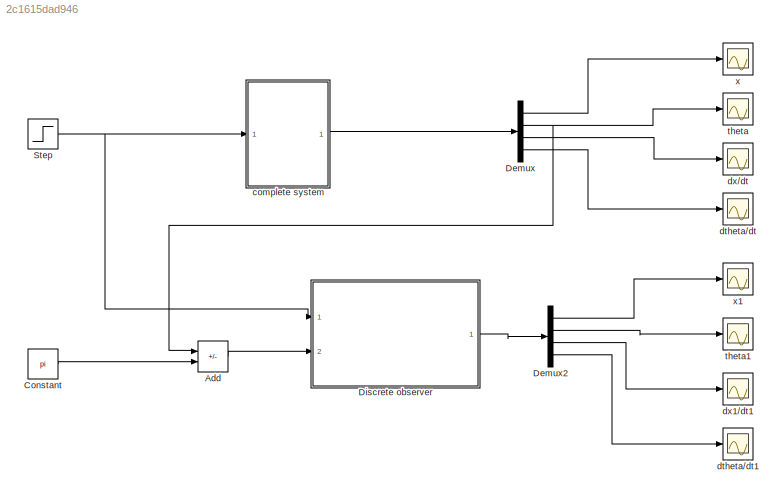
MODEL mdl_2c1615dad946
KIND model
CONFIG AbsTol = auto
CONFIG EnableMultiTasking = on
CONFIG FixedStep = 0.01
CONFIG MaxStep = auto
CONFIG MinStep = auto
CONFIG RelTol = 1e-6
CONFIG SampleTimeConstraint = Unconstrained
CONFIG SolverName = ode1
CONFIG StartTime = 0.0
CONFIG StopTime = 50
BLOCK [Sum] Add
  IconShape = rectangular
  Inputs = +-
  Ports = [2, 1]
BLOCK [Constant] Constant
  Value = pi
BLOCK [Demux] Demux
  Ports = [1, 4]
BLOCK [Demux] Demux2
  Ports = [1, 4]
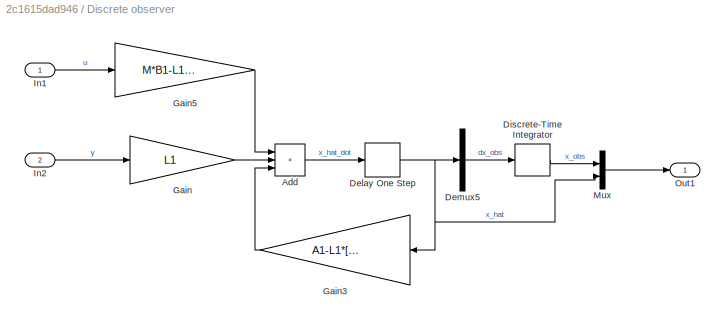
BLOCK [SubSystem] Discrete observer
  Ports = [2, 1]
  RequestExecContextInheritance = off
BLOCK [Sum] Discrete observer/Add
  IconShape = rectangular
  Inputs = +++
  Ports = [3, 1]
BLOCK [Delay] Discrete observer/Delay One Step
  DelayLength = 1
  InputPortMap = u0
  Ports = [1, 1]
BLOCK [Demux] Discrete observer/Demux5
  Outputs = 3
  Ports = [1, 3]
BLOCK [DiscreteIntegrator] Discrete observer/Discrete-Time Integrator
  ICPrevOutput = DiscIntNeverNeededParam
  ICPrevScaledInput = DiscIntNeverNeededParam
  Ports = [1, 1]
  SampleTime = 0.01
BLOCK [Gain] Discrete observer/Gain
  Gain = L1
  Multiplication = Matrix(K*u)
BLOCK [Gain] Discrete observer/Gain3
  Gain = A1-L1*[1 0 0]
  Multiplication = Matrix(K*u)
  NameLocation = top
BLOCK [Gain] Discrete observer/Gain5
  Gain = M*B1-L1*0
  Multiplication = Matrix(K*u)
BLOCK [Inport] Discrete observer/In1
BLOCK [Inport] Discrete observer/In2
  Port = 2
BLOCK [Mux] Discrete observer/Mux
  DisplayOption = bar
  Inputs = 2
  Ports = [2, 1]
BLOCK [Outport] Discrete observer/Out1
BLOCK [Step] Step
  After = 0.3
  SampleTime = 0
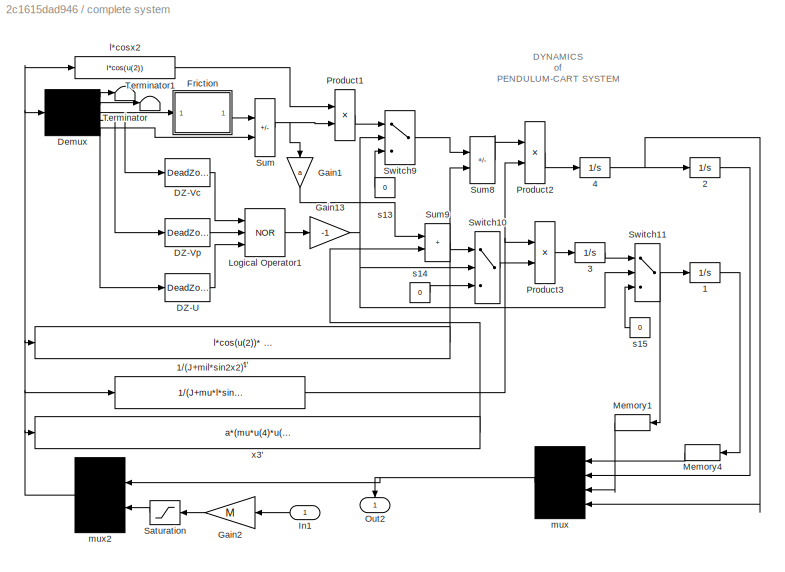
BLOCK [SubSystem] complete system
  Ports = [1, 1]
  RequestExecContextInheritance = off
BLOCK [Integrator] complete system/1
  Ports = [1, 1]
BLOCK [Fcn] complete system/1//(J+mil*sin2x2)
  Expr = 1/(J+mu*l*sin(u[2])*sin(u[2]))
BLOCK [Integrator] complete system/2
  InitialCondition = pi
  Ports = [1, 1]
BLOCK [Integrator] complete system/3
  Ports = [1, 1]
BLOCK [Integrator] complete system/4
  Ports = [1, 1]
BLOCK [DeadZone] complete system/DZ-U
  LowerValue = -DZu
  UpperValue = DZu
BLOCK [DeadZone] complete system/DZ-Vc
  LowerValue = -DZcv
  UpperValue = DZcv
BLOCK [DeadZone] complete system/DZ-Vp
  LowerValue = -DZcp
  UpperValue = DZcp
BLOCK [Demux] complete system/Demux
  Outputs = 5
  Ports = [1, 5]
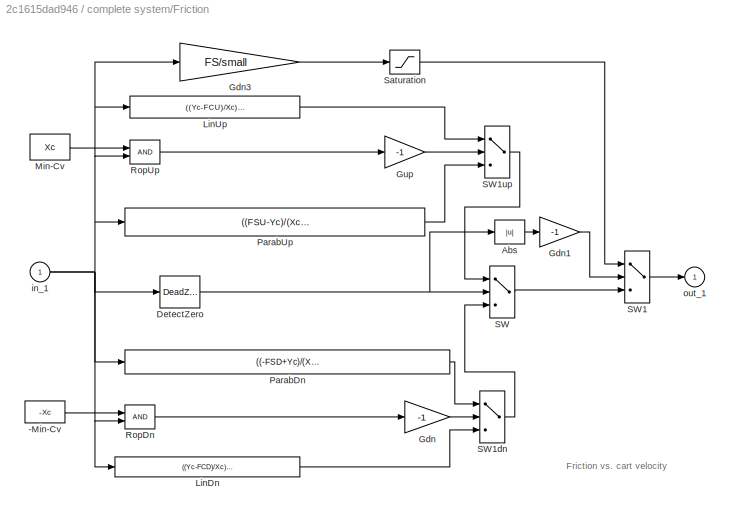
BLOCK [SubSystem] complete system/Friction
  NameLocation = top
  Ports = [1, 1]
  RequestExecContextInheritance = off
  ShowPortLabels = none
BLOCK [Constant] complete system/Friction/-Min-Cv
  Value = -Xc
BLOCK [Abs] complete system/Friction/Abs
BLOCK [DeadZone] complete system/Friction/DetectZero
  LowerValue = -Z
  UpperValue = Z
BLOCK [Gain] complete system/Friction/Gdn
  Gain = -1
  SaturateOnIntegerOverflow = on
BLOCK [Gain] complete system/Friction/Gdn1
  Gain = -1
  SaturateOnIntegerOverflow = on
BLOCK [Gain] complete system/Friction/Gdn3
  Gain = FS/small
  SaturateOnIntegerOverflow = on
BLOCK [Gain] complete system/Friction/Gup
  Gain = -1
  SaturateOnIntegerOverflow = on
BLOCK [Fcn] complete system/Friction/LinDn
  Expr = ((Yc-FCD)/Xc)*u(1)-FCD
BLOCK [Fcn] complete system/Friction/LinUp
  Expr = ((Yc-FCU)/Xc)*u(1)+FCU
BLOCK [Constant] complete system/Friction/Min-Cv
  Value = Xc
BLOCK [Fcn] complete system/Friction/ParabDn
  Expr = ((-FSD+Yc)/(Xc*Xc))*u[1]*u(1)-2*((-FSD+Yc)/-Xc)*u(1)-FSD
BLOCK [Fcn] complete system/Friction/ParabUp
  Expr = ((FSU-Yc)/(Xc*Xc))*u[1]*u(1)-2*((FSU-Yc)/Xc)*u(1)+FSU
BLOCK [RelationalOperator] complete system/Friction/RopDn
  Ports = [2, 1]
BLOCK [RelationalOperator] complete system/Friction/RopUp
  Ports = [2, 1]
BLOCK [Switch] complete system/Friction/SW
BLOCK [Switch] complete system/Friction/SW1
BLOCK [Switch] complete system/Friction/SW1dn
BLOCK [Switch] complete system/Friction/SW1up
BLOCK [Saturate] complete system/Friction/Saturation
  LowerLimit = FSdl
  UpperLimit = FSul
BLOCK [Inport] complete system/Friction/in_1
BLOCK [Outport] complete system/Friction/out_1
  InitialOutput = 0
BLOCK [Gain] complete system/Gain1
  Gain = a
  NameLocation = right
  SaturateOnIntegerOverflow = on
BLOCK [Gain] complete system/Gain13
  Gain = -1
  SaturateOnIntegerOverflow = on
BLOCK [Gain] complete system/Gain2
  Gain = M
BLOCK [Inport] complete system/In1
BLOCK [Logic] complete system/Logical Operator1
  Inputs = 3
  Operator = NOR
  Ports = [3, 1]
BLOCK [Memory] complete system/Memory1
BLOCK [Memory] complete system/Memory4
BLOCK [Outport] complete system/Out2
  NameLocation = right
BLOCK [Product] complete system/Product1
  Ports = [2, 1]
  SaturateOnIntegerOverflow = on
BLOCK [Product] complete system/Product2
  Ports = [2, 1]
  SaturateOnIntegerOverflow = on
BLOCK [Product] complete system/Product3
  Ports = [2, 1]
  SaturateOnIntegerOverflow = on
BLOCK [Saturate] complete system/Saturation
  LowerLimit = -Um*M
  UpperLimit = Um*M
BLOCK [Sum] complete system/Sum
  IconShape = rectangular
  Inputs = -+
  Ports = [2, 1]
  SaturateOnIntegerOverflow = on
BLOCK [Sum] complete system/Sum8
  IconShape = rectangular
  Inputs = -+
  Ports = [2, 1]
  SaturateOnIntegerOverflow = on
BLOCK [Sum] complete system/Sum9
  IconShape = rectangular
  Ports = [2, 1]
  SaturateOnIntegerOverflow = on
BLOCK [Switch] complete system/Switch10
BLOCK [Switch] complete system/Switch11
BLOCK [Switch] complete system/Switch9
BLOCK [Terminator] complete system/Terminator
BLOCK [Terminator] complete system/Terminator1
BLOCK [Fcn] complete system/l*cosx2
  Expr = l*cos(u(2))
BLOCK [Mux] complete system/mux
  Ports = [4, 1]
BLOCK [Mux] complete system/mux2
  Inputs = [4 1]
  Ports = [2, 1]
BLOCK [Constant] complete system/s13
  NameLocation = top
  Value = 0
BLOCK [Constant] complete system/s14
  NameLocation = top
  Value = 0
BLOCK [Constant] complete system/s15
  NameLocation = top
  Value = 0
BLOCK [Fcn] complete system/x3'
  Expr = a*(mu*u(4)*u(4)*sin(u(2)) )-l*cos(u(2))*(mu*g*sin(u(2))-fp*u(4))
BLOCK [Fcn] complete system/x4'
  Expr = l*cos(u(2))* (-mu*u(4)*u(4)*sin(u(2))) + mu*g*sin(u(2))-fp*u(4)
BLOCK [Scope] dtheta//dt
  Floating = off
  NumInputPorts = 1
  Ports = [1]
  ScopeSpecificationString = Simulink.scopes.TimeScopeBlockCfg('CurrentConfiguration', extmgr.ConfigurationSet(extmgr.Configuration('Core','General UI',true),extmgr.Configuration('Core','Source UI',true),extmgr.Configuration('Sources','WiredSimulink',true,'DataLogging',true,'DataLoggingVariableName','ScopeData1','DataLoggingLimitDataPoints',true,'DataLoggingSaveFormat','Array','DataLoggingDecimation','1','DataLoggingDecimateD...<+1689ch>
BLOCK [Scope] dtheta//dt1
  Floating = off
  NumInputPorts = 1
  Ports = [1]
  ScopeSpecificationString = Simulink.scopes.TimeScopeBlockCfg('CurrentConfiguration', extmgr.ConfigurationSet(extmgr.Configuration('Core','General UI',true),extmgr.Configuration('Core','Source UI',true),extmgr.Configuration('Sources','WiredSimulink',true,'DataLogging',true,'DataLoggingLimitDataPoints',true,'DataLoggingSaveFormat','Array','DataLoggingDecimation','1','DataLoggingDecimateData',true,'DataLoggingVariableName','dt...<+1707ch>
BLOCK [Scope] dx//dt
  Floating = off
  NumInputPorts = 1
  Ports = [1]
  ScopeSpecificationString = Simulink.scopes.TimeScopeBlockCfg('CurrentConfiguration', extmgr.ConfigurationSet(extmgr.Configuration('Core','General UI',true),extmgr.Configuration('Core','Source UI',true),extmgr.Configuration('Sources','WiredSimulink',true,'DataLogging',true,'DataLoggingVariableName','ScopeData2','DataLoggingLimitDataPoints',true,'DataLoggingSaveFormat','Array','DataLoggingDecimation','1','DataLoggingDecimateD...<+1687ch>
BLOCK [Scope] dx1//dt1
  Floating = off
  NumInputPorts = 1
  Ports = [1]
  ScopeSpecificationString = Simulink.scopes.TimeScopeBlockCfg('CurrentConfiguration', extmgr.ConfigurationSet(extmgr.Configuration('Core','General UI',true),extmgr.Configuration('Core','Source UI',true),extmgr.Configuration('Sources','WiredSimulink',true,'DataLoggingVariableName','dx7','DataLogging',true,'DataLoggingLimitDataPoints',true,'DataLoggingDecimateData',true,'DataLoggingSaveFormat','Array','DataLoggingDecimation','...<+1508ch>
BLOCK [Scope] theta
  Floating = off
  NumInputPorts = 1
  Ports = [1]
  ScopeSpecificationString = Simulink.scopes.TimeScopeBlockCfg('CurrentConfiguration', extmgr.ConfigurationSet(extmgr.Configuration('Core','General UI',true),extmgr.Configuration('Core','Source UI',true),extmgr.Configuration('Sources','WiredSimulink',true,'DataLogging',true,'DataLoggingVariableName','ScopeData3','DataLoggingLimitDataPoints',true,'DataLoggingSaveFormat','Array','DataLoggingDecimation','1','DataLoggingDecimateD...<+1683ch>
BLOCK [Scope] theta1
  Floating = off
  NumInputPorts = 1
  Ports = [1]
  ScopeSpecificationString = Simulink.scopes.TimeScopeBlockCfg('CurrentConfiguration', extmgr.ConfigurationSet(extmgr.Configuration('Core','General UI',true),extmgr.Configuration('Core','Source UI',true),extmgr.Configuration('Sources','WiredSimulink',true,'DataLoggingVariableName','theta7','DataLogging',true,'DataLoggingLimitDataPoints',true,'DataLoggingDecimateData',true,'DataLoggingSaveFormat','Array','DataLoggingDecimation...<+1507ch>
BLOCK [Scope] x
  Floating = off
  NumInputPorts = 1
  Ports = [1]
  ScopeSpecificationString = Simulink.scopes.TimeScopeBlockCfg('CurrentConfiguration', extmgr.ConfigurationSet(extmgr.Configuration('Core','General UI',true),extmgr.Configuration('Core','Source UI',true),extmgr.Configuration('Sources','WiredSimulink',true,'DataLogging',true,'DataLoggingLimitDataPoints',true,'DataLoggingSaveFormat','Array','DataLoggingDecimation','1','DataLoggingDecimateData',true),extmgr.Configuration('Visual...<+1652ch>
BLOCK [Scope] x1
  Floating = off
  NumInputPorts = 1
  Ports = [1]
  ScopeSpecificationString = Simulink.scopes.TimeScopeBlockCfg('CurrentConfiguration', extmgr.ConfigurationSet(extmgr.Configuration('Core','General UI',true),extmgr.Configuration('Core','Source UI',true),extmgr.Configuration('Sources','WiredSimulink',true,'DataLoggingVariableName','x7','DataLogging',true,'DataLoggingLimitDataPoints',true,'DataLoggingDecimateData',true,'DataLoggingSaveFormat','Array','DataLoggingDecimation','1...<+1542ch>
ANNOTATION complete system: DYNAMICS of PENDULUM-CART SYSTEM
ANNOTATION complete system/Friction: Friction vs. cart velocity
LINE Add:1 -> Discrete observer:2
LINE Constant:1 -> Add:2
LINE Demux2:1 -> x1:1
LINE Demux2:2 -> theta1:1
LINE Demux2:3 -> dx1//dt1:1
LINE Demux2:4 -> dtheta//dt1:1
LINE Demux:1 -> x:1
NET Demux:2 -> Add:1, theta:1
LINE Demux:3 -> dx//dt:1
LINE Demux:4 -> dtheta//dt:1
LINE Discrete observer/Add:1 -> Discrete observer/Delay One Step:1
NET Discrete observer/Delay One Step:1 -> Discrete observer/Demux5:1, Discrete observer/Gain3:1, Discrete observer/Mux:2
LINE Discrete observer/Demux5:2 -> Discrete observer/Discrete-Time Integrator:1
LINE Discrete observer/Discrete-Time Integrator:1 -> Discrete observer/Mux:1
LINE Discrete observer/Gain3:1 -> Discrete observer/Add:3
LINE Discrete observer/Gain5:1 -> Discrete observer/Add:1
LINE Discrete observer/Gain:1 -> Discrete observer/Add:2
LINE Discrete observer/In1:1 -> Discrete observer/Gain5:1
LINE Discrete observer/In2:1 -> Discrete observer/Gain:1
LINE Discrete observer/Mux:1 -> Discrete observer/Out1:1
LINE Discrete observer:1 -> Demux2:1
NET Step:1 -> Discrete observer:1, complete system:1
NET complete system/1//(J+mil*sin2x2):1 -> complete system/Product2:2, complete system/Product3:1
LINE complete system/1:1 -> complete system/Memory4:1
LINE complete system/2:1 -> complete system/mux:2
LINE complete system/3:1 -> complete system/Switch11:1
NET complete system/4:1 -> complete system/2:1, complete system/mux:4
LINE complete system/DZ-U:1 -> complete system/Logical Operator1:3
LINE complete system/DZ-Vc:1 -> complete system/Logical Operator1:1
LINE complete system/DZ-Vp:1 -> complete system/Logical Operator1:2
LINE complete system/Demux:1 -> complete system/Terminator:1
LINE complete system/Demux:2 -> complete system/Terminator1:1
NET complete system/Demux:3 -> complete system/DZ-Vc:1, complete system/Friction:1
LINE complete system/Demux:4 -> complete system/DZ-Vp:1
NET complete system/Demux:5 -> complete system/DZ-U:1, complete system/Sum:2
LINE complete system/Friction/-Min-Cv:1 -> complete system/Friction/RopDn:1
LINE complete system/Friction/Abs:1 -> complete system/Friction/Gdn1:1
NET complete system/Friction/DetectZero:1 -> complete system/Friction/Abs:1, complete system/Friction/SW:2
LINE complete system/Friction/Gdn1:1 -> complete system/Friction/SW1:2
LINE complete system/Friction/Gdn3:1 -> complete system/Friction/Saturation:1
LINE complete system/Friction/Gdn:1 -> complete system/Friction/SW1dn:2
LINE complete system/Friction/Gup:1 -> complete system/Friction/SW1up:2
LINE complete system/Friction/LinDn:1 -> complete system/Friction/SW1dn:3
LINE complete system/Friction/LinUp:1 -> complete system/Friction/SW1up:1
LINE complete system/Friction/Min-Cv:1 -> complete system/Friction/RopUp:1
LINE complete system/Friction/ParabDn:1 -> complete system/Friction/SW1dn:1
LINE complete system/Friction/ParabUp:1 -> complete system/Friction/SW1up:3
LINE complete system/Friction/RopDn:1 -> complete system/Friction/Gdn:1
LINE complete system/Friction/RopUp:1 -> complete system/Friction/Gup:1
LINE complete system/Friction/SW1:1 -> complete system/Friction/out_1:1
LINE complete system/Friction/SW1dn:1 -> complete system/Friction/SW:3
LINE complete system/Friction/SW1up:1 -> complete system/Friction/SW:1
LINE complete system/Friction/SW:1 -> complete system/Friction/SW1:3
LINE complete system/Friction/Saturation:1 -> complete system/Friction/SW1:1
NET complete system/Friction/in_1:1 -> complete system/Friction/DetectZero:1, complete system/Friction/Gdn3:1, complete system/Friction/LinDn:1, complete system/Friction/LinUp:1, complete system/Friction/ParabDn:1, complete system/Friction/ParabUp:1, complete system/Friction/RopDn:2, complete system/Friction/RopUp:2
LINE complete system/Friction:1 -> complete system/Sum:1
NET complete system/Gain13:1 -> complete system/Switch10:2, complete system/Switch11:2, complete system/Switch9:2
LINE complete system/Gain1:1 -> complete system/Sum9:1
LINE complete system/Gain2:1 -> complete system/Saturation:1
LINE complete system/In1:1 -> complete system/Gain2:1
LINE complete system/Logical Operator1:1 -> complete system/Gain13:1
LINE complete system/Memory1:1 -> complete system/mux:3
LINE complete system/Memory4:1 -> complete system/mux:1
LINE complete system/Product1:1 -> complete system/Switch9:1
LINE complete system/Product2:1 -> complete system/4:1
LINE complete system/Product3:1 -> complete system/3:1
LINE complete system/Saturation:1 -> complete system/mux2:2
LINE complete system/Sum8:1 -> complete system/Product2:1
LINE complete system/Sum9:1 -> complete system/Switch10:1
NET complete system/Sum:1 -> complete system/Gain1:1, complete system/Product1:2
LINE complete system/Switch10:1 -> complete system/Product3:2
NET complete system/Switch11:1 -> complete system/1:1, complete system/Memory1:1
LINE complete system/Switch9:1 -> complete system/Sum8:1
LINE complete system/l*cosx2:1 -> complete system/Product1:1
NET complete system/mux2:1 -> complete system/1//(J+mil*sin2x2):1, complete system/Demux:1, complete system/l*cosx2:1, complete system/x3':1, complete system/x4':1
NET complete system/mux:1 -> complete system/Out2:1, complete system/mux2:1
LINE complete system/s13:1 -> complete system/Switch9:3
LINE complete system/s14:1 -> complete system/Switch10:3
LINE complete system/s15:1 -> complete system/Switch11:3
LINE complete system/x3':1 -> complete system/Sum9:2
LINE complete system/x4':1 -> complete system/Sum8:2
LINE complete system:1 -> Demux:1
note: NET lines group one-source signal fan-out (src -> all destinations, sorted); 1:1 wires keep LINE
